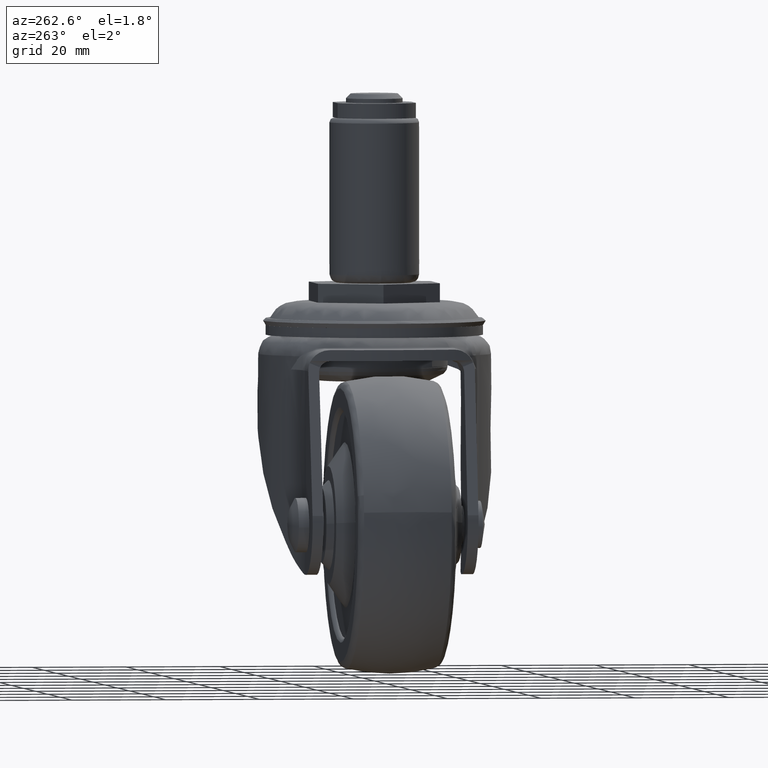
[diagram: clean part render]
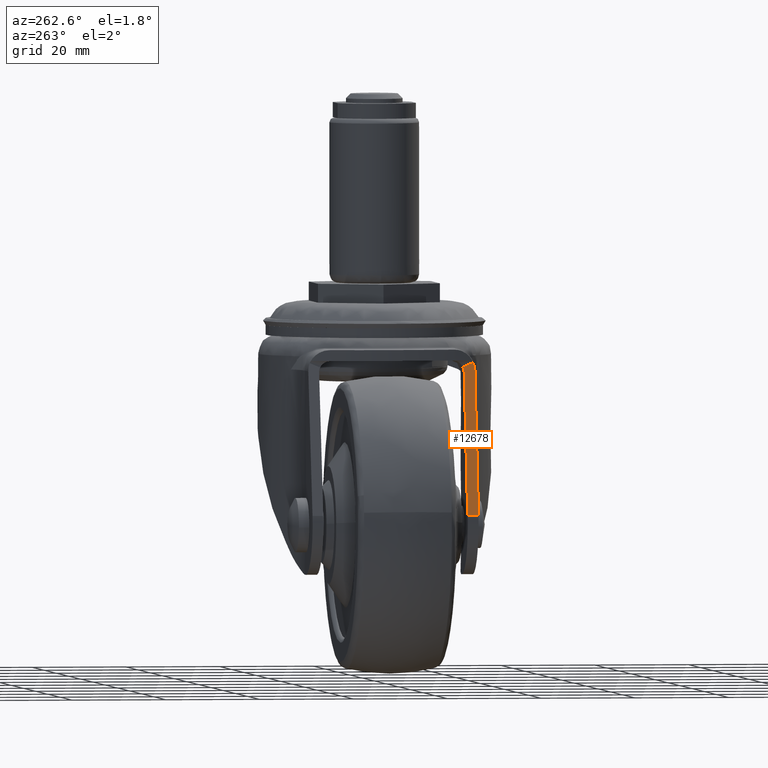
[diagram: same view with one face highlighted and labeled with its STEP entity id]
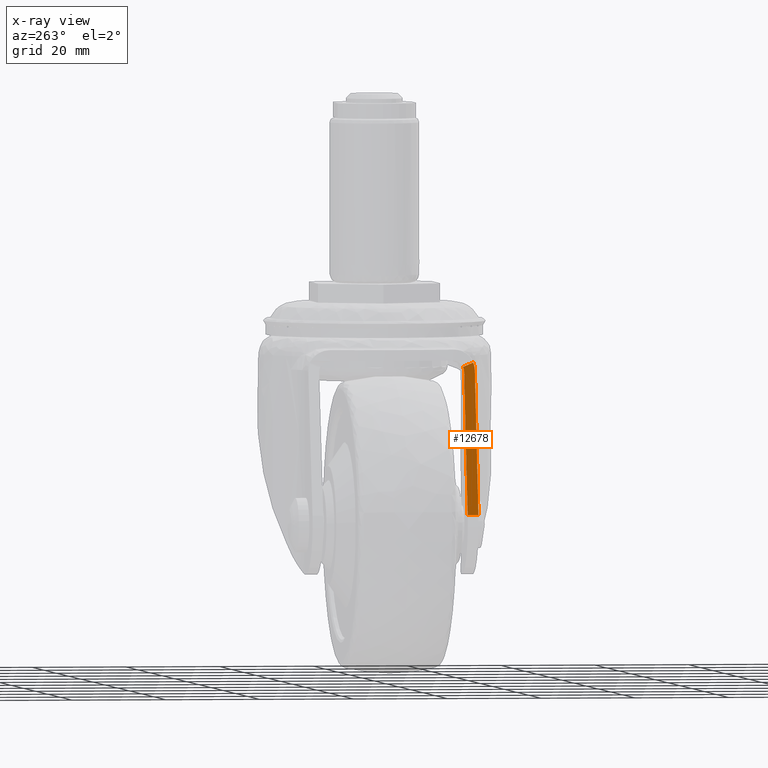
[diagram: x-ray of the same camera — body ghosted, the highlighted face saturated]
A machine part, auxiliary view. The second image highlights one B-rep face of the part: STEP entity #12678.
The next image is the same camera in x-ray: the body ghosted, the highlighted face saturated — about 0% of this face is hidden behind the body in this view.
In plain terms, the highlighted face is a freeform B-spline surface patch.
Its self-contained STEP definition (entity closure, byte-faithful):
#11397=CARTESIAN_POINT('',(-28.345589820127351,-17.764667491044101,-15.857309212873750));
#11398=VERTEX_POINT('',#11397);
#11399=CARTESIAN_POINT('',(-27.990335141911800,-17.440069789690650,-14.169559988337900));
#11400=VERTEX_POINT('',#11399);
#11401=CARTESIAN_POINT('',(-28.345589820127351,-17.764667491044101,-15.857309212873750));
#11402=CARTESIAN_POINT('',(-28.161234243076557,-17.766685419947574,-14.981469987422219));
#11403=CARTESIAN_POINT('',(-27.990335141911800,-17.440069789690650,-14.169559988337900));
#11411=(BOUNDED_CURVE()B_SPLINE_CURVE(2,(#11401,#11402,#11403),.UNSPECIFIED.,.F.,.U.)CURVE()GEOMETRIC_REPRESENTATION_ITEM()QUASI_UNIFORM_CURVE()RATIONAL_B_SPLINE_CURVE((1.0,0.981581966817887,1.0))REPRESENTATION_ITEM(''));
#11412=EDGE_CURVE('',#11398,#11400,#11411,.T.);
#11686=CARTESIAN_POINT('',(-28.181417208642550,-15.220976326374350,-15.077355521299101));
#11687=VERTEX_POINT('',#11686);
#11688=CARTESIAN_POINT('',(-27.990335141911800,-17.440069789690650,-14.169559988337900));
#11689=CARTESIAN_POINT('',(-28.061292449017369,-16.742845508304679,-14.506665021392401));
#11690=CARTESIAN_POINT('',(-28.181417208642550,-15.220976326374350,-15.077355521299101));
#11691=B_SPLINE_CURVE_WITH_KNOTS('',2,(#11688,#11689,#11690),.UNSPECIFIED.,.F.,.U.,(3,3),(0.221119440922463,1.0),.UNSPECIFIED.);
#11692=EDGE_CURVE('',#11400,#11687,#11691,.T.);
#11948=CARTESIAN_POINT('',(-28.408736881263700,-15.463865472710649,-16.157309212873852));
#11949=VERTEX_POINT('',#11948);
#11950=CARTESIAN_POINT('',(-28.181417208642589,-15.220976326374350,-15.077355521299070));
#11951=CARTESIAN_POINT('',(-28.289213369548939,-15.465137129548285,-15.589475130508809));
#11952=CARTESIAN_POINT('',(-28.408736881263700,-15.463865472710641,-16.157309212873852));
#11960=(BOUNDED_CURVE()B_SPLINE_CURVE(2,(#11950,#11951,#11952),.UNSPECIFIED.,.F.,.U.)CURVE()GEOMETRIC_REPRESENTATION_ITEM()QUASI_UNIFORM_CURVE()RATIONAL_B_SPLINE_CURVE((1.0,0.975162160321976,1.0))REPRESENTATION_ITEM(''));
#11961=EDGE_CURVE('',#11687,#11949,#11960,.T.);
#12191=CARTESIAN_POINT('',(-34.745005646522102,-15.396451460313299,-46.259749379837203));
#12192=VERTEX_POINT('',#12191);
#12193=CARTESIAN_POINT('',(-34.745005646522102,-17.696581632656699,-46.259749379837203));
#12194=VERTEX_POINT('',#12193);
#12195=CARTESIAN_POINT('',(-34.745005646522102,-15.396451460313299,-46.259749379837203));
#12196=CARTESIAN_POINT('',(-34.745005646522102,-17.696581632656699,-46.259749379837203));
#12197=QUASI_UNIFORM_CURVE('',1,(#12195,#12196),.UNSPECIFIED.,.F.,.U.);
#12198=EDGE_CURVE('',#12192,#12194,#12197,.T.);
#12657=CARTESIAN_POINT('',(-27.652939426706361,-17.891724901843240,-12.566655391669270));
#12658=CARTESIAN_POINT('',(-35.082401603293320,-17.891724901843240,-47.862655124140453));
#12659=CARTESIAN_POINT('',(-27.652939426706361,-15.093918506212530,-12.566655391669270));
#12660=CARTESIAN_POINT('',(-35.082401603293320,-15.093918506212530,-47.862655124140453));
#12661=B_SPLINE_SURFACE_WITH_KNOTS('',1,1,((#12657,#12659),(#12658,#12660)),.UNSPECIFIED.,.F.,.F.,.U.,(2,2),(2,2),(0.0,36.069440047607372),(0.0,2.797806395630719),.UNSPECIFIED.);
#12662=CARTESIAN_POINT('',(-34.745005646522102,-17.696581632656699,-46.259749379837203));
#12663=CARTESIAN_POINT('',(-28.345589820127351,-17.764667491044101,-15.857309212873750));
#12664=QUASI_UNIFORM_CURVE('',1,(#12662,#12663),.UNSPECIFIED.,.F.,.U.);
#12665=EDGE_CURVE('',#12194,#11398,#12664,.T.);
#12666=ORIENTED_EDGE('',*,*,#12665,.T.);
#12667=ORIENTED_EDGE('',*,*,#11412,.T.);
#12668=ORIENTED_EDGE('',*,*,#11692,.T.);
#12669=ORIENTED_EDGE('',*,*,#11961,.T.);
#12670=CARTESIAN_POINT('',(-34.745005646522102,-15.396451460313299,-46.259749379837203));
#12671=CARTESIAN_POINT('',(-28.408736881263700,-15.463865472710649,-16.157309212873852));
#12672=QUASI_UNIFORM_CURVE('',1,(#12670,#12671),.UNSPECIFIED.,.F.,.U.);
#12673=EDGE_CURVE('',#12192,#11949,#12672,.T.);
#12674=ORIENTED_EDGE('',*,*,#12673,.F.);
#12675=ORIENTED_EDGE('',*,*,#12198,.T.);
#12676=EDGE_LOOP('',(#12666,#12667,#12668,#12669,#12674,#12675));
#12677=FACE_OUTER_BOUND('',#12676,.T.);
#12678=ADVANCED_FACE('',(#12677),#12661,.F.);